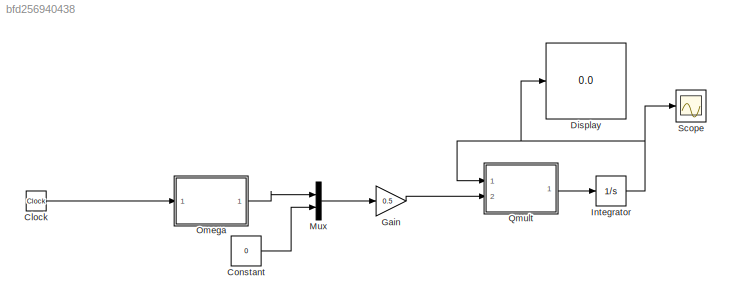
MODEL slx_bfd256940438
KIND model
CONFIG AbsTol = auto
CONFIG EnableMultiTasking = off
CONFIG FixedStep = auto
CONFIG MaxStep = auto
CONFIG MinStep = auto
CONFIG RelTol = 1e-3
CONFIG SampleTimeConstraint = Unconstrained
CONFIG SolverName = VariableStepAuto
CONFIG StartTime = 0.0
CONFIG StopTime = 1800.0
BLOCK [Clock] Clock
BLOCK [Constant] Constant
  Value = 0
BLOCK [Display] Display
  Decimation = 1
  Ports = [1]
BLOCK [Gain] Gain
  Gain = 0.5
BLOCK [Integrator] Integrator
  InitialCondition = [0;0;0;1]
  Ports = [1, 1]
BLOCK [Mux] Mux
  DisplayOption = bar
  Inputs = 2
  Ports = [2, 1]
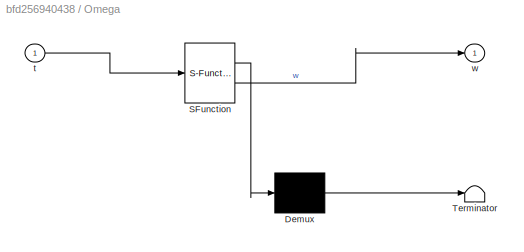
BLOCK [SubSystem] Omega
  ErrorFcn = Stateflow.Translate.translate
  PermitHierarchicalResolution = ExplicitOnly
  Ports = [1, 1]
  RequestExecContextInheritance = off
  SFBlockType = MATLAB Function
  TreatAsAtomicUnit = on
BLOCK [Demux] Omega/ Demux 
  Outputs = 1
  Ports = [1, 1]
BLOCK [S-Function] Omega/ SFunction 
  EnableBusSupport = on
  FunctionName = sf_sfun
  PortCounts = [1 2]
  Ports = [1, 2]
  SFcnIsStateOwnerBlock = off
  SFunctionDeploymentMode = off
  Tag = Stateflow S-Function 2
BLOCK [Terminator] Omega/ Terminator 
BLOCK [Inport] Omega/t
BLOCK [Outport] Omega/w
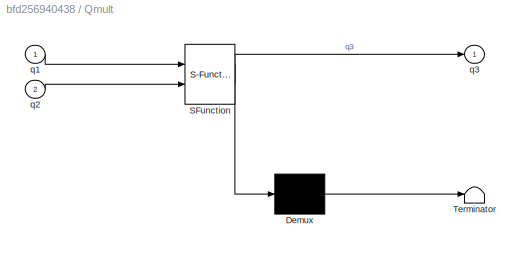
BLOCK [SubSystem] Qmult
  ErrorFcn = Stateflow.Translate.translate
  PermitHierarchicalResolution = ExplicitOnly
  Ports = [2, 1]
  RequestExecContextInheritance = off
  SFBlockType = MATLAB Function
  TreatAsAtomicUnit = on
BLOCK [Demux] Qmult/ Demux 
  Outputs = 1
  Ports = [1, 1]
BLOCK [S-Function] Qmult/ SFunction 
  EnableBusSupport = on
  FunctionName = sf_sfun
  PortCounts = [2 2]
  Ports = [2, 2]
  SFcnIsStateOwnerBlock = off
  SFunctionDeploymentMode = off
  Tag = Stateflow S-Function 1
BLOCK [Terminator] Qmult/ Terminator 
BLOCK [Inport] Qmult/q1
BLOCK [Inport] Qmult/q2
  Port = 2
BLOCK [Outport] Qmult/q3
BLOCK [Scope] Scope
  Floating = off
  NumInputPorts = 1
  Ports = [1]
  ScopeSpecificationString = Simulink.scopes.TimeScopeBlockCfg('CurrentConfiguration', extmgr.ConfigurationSet(extmgr.Configuration('Core','General UI',true),extmgr.Configuration('Core','Source UI',true),extmgr.Configuration('Sources','WiredSimulink',true),extmgr.Configuration('Visuals','Time Domain',true,'SerializedDisplays',{struct('MinYLimReal','-0.35125','MaxYLimReal','1.15061','YLabelReal','','MinYLimMag','0.00000','MaxY...<+1377ch>
LINE Clock:1 -> Omega:1
LINE Constant:1 -> Mux:2
LINE Gain:1 -> Qmult:2
NET Integrator:1 -> Display:1, Qmult:1, Scope:1
LINE Mux:1 -> Gain:1
LINE Omega:1 -> Mux:1
LINE Qmult:1 -> Integrator:1
note: NET lines group one-source signal fan-out (src -> all destinations, sorted); 1:1 wires keep LINE
CHART Omega states=1 transitions=1
  STATE_LABEL 'eML_blk_kernel()'
  STATE_LABEL 'SCRIPT:\nfunction w = fcn(t)\n\nw = 2*pi/300 *[sin(2*pi*t/60);cos(2*pi*t/80);cos(2*pi*t/70)];\n'
CHART Qmult states=1 transitions=1
  STATE_LABEL 'eML_blk_kernel()'
  STATE_LABEL 'SCRIPT:\nfunction q3 = qmult(q1,q2)\n\nq3 = [q2(4).*q1(1:3) + q1(4).*q2(1:3) - cross(q2(1:3),q1(1:3));\n    q2(4)*q1(4) - dot(q2(1:3),q1(1:3))];\n'
CHART  states=0 transitions=0
CHART  states=0 transitions=0
